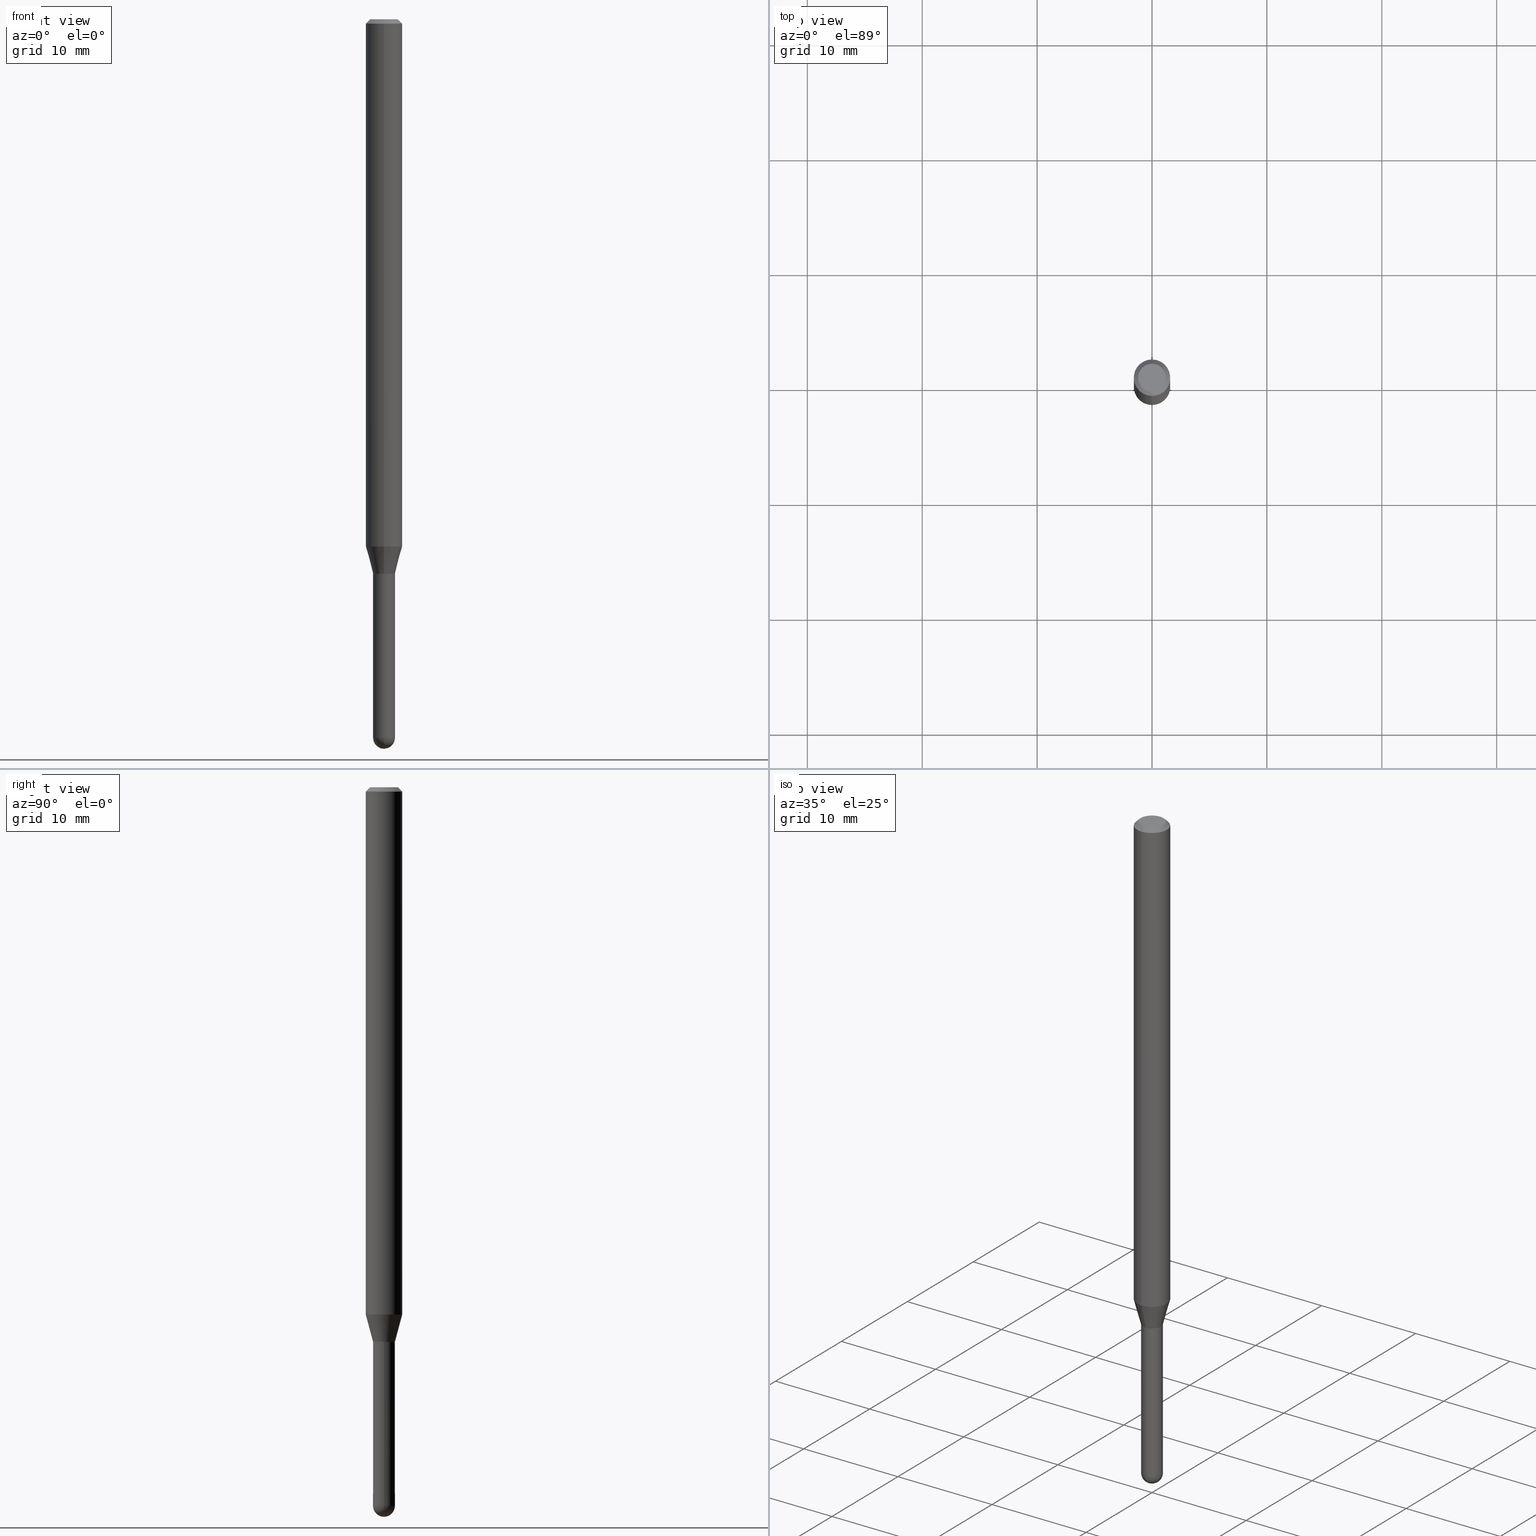
[diagram: canonical four-view strip — front | top / right | iso, engineering-drawing reading convention]
A machine part, canonical four-view strip (front | top / right | iso — engineering-drawing reading convention). The complete STEP part file that produces these views, byte-faithful:
ISO-10303-21;
HEADER;
FILE_DESCRIPTION (( 'STEP AP203' ),
    '1' );
FILE_NAME ('04498.STEP',
    '2024-03-08T20:09:47',
    ( '' ),
    ( '' ),
    'SwSTEP 2.0',
    'SolidWorks 2023',
    '' );
FILE_SCHEMA (( 'CONFIG_CONTROL_DESIGN' ));
ENDSEC;

DATA;
#1 = ADVANCED_FACE ( 'NONE', ( #298 ), #374, .F. ) ;
#2 = PERSON_AND_ORGANIZATION_ROLE ( 'classification_officer' ) ;
#3 = EDGE_CURVE ( 'NONE', #157, #508, #367, .T. ) ;
#4 = APPROVAL_ROLE ( '' ) ;
#5 = AXIS2_PLACEMENT_3D ( 'NONE', #33, #473, #109 ) ;
#6 = DIRECTION ( 'NONE',  ( -2.445468806185136597E-29, 3.491481338843145583E-15, 1.000000000000000000 ) ) ;
#7 = ADVANCED_FACE ( 'NONE', ( #332 ), #65, .T. ) ;
#8 = ORIENTED_EDGE ( 'NONE', *, *, #78, .T. ) ;
#9 = ORIENTED_EDGE ( 'NONE', *, *, #190, .F. ) ;
#10 = DIRECTION ( 'NONE',  ( -6.982962677686265922E-15, -1.000000000000000000, 3.491600828614139048E-15 ) ) ;
#11 = CARTESIAN_POINT ( 'NONE',  ( 4.364351673553919652E-16, 0.06249999999999995143, -0.01500000000000028394 ) ) ;
#12 = AXIS2_PLACEMENT_3D ( 'NONE', #317, #6, #507 ) ;
#13 = ORGANIZATION ( 'UNSPECIFIED', 'UNSPECIFIED', '' ) ;
#14 = DIRECTION ( 'NONE',  ( -2.445385366924015343E-29, 3.491600828614139048E-15, 1.000000000000000000 ) ) ;
#15 = ADVANCED_FACE ( 'NONE', ( #281 ), #85, .T. ) ;
#16 = CARTESIAN_POINT ( 'NONE',  ( 0.000000000000000000, 0.000000000000000000, 0.000000000000000000 ) ) ;
#17 = DIRECTION ( 'NONE',  ( -6.982962677686266711E-15, -1.000000000000000000, 3.491600828614139048E-15 ) ) ;
#18 = ADVANCED_FACE ( 'NONE', ( #131 ), #219, .T. ) ;
#19 = DIRECTION ( 'NONE',  ( -6.982962677686265922E-15, -1.000000000000000000, 3.491600828614139442E-15 ) ) ;
#20 = FACE_OUTER_BOUND ( 'NONE', #453, .T. ) ;
#21 = AXIS2_PLACEMENT_3D ( 'NONE', #16, #26, #19 ) ;
#22 = AXIS2_PLACEMENT_3D ( 'NONE', #460, #291, #204 ) ;
#23 = CARTESIAN_POINT ( 'NONE',  ( -2.583696190743453531E-16, -0.03700000000000663175, -1.900000000000000577 ) ) ;
#24 = SECURITY_CLASSIFICATION ( '', '', #172 ) ;
#25 = FACE_OUTER_BOUND ( 'NONE', #98, .T. ) ;
#26 = DIRECTION ( 'NONE',  ( -2.445385366924015343E-29, 3.491600828614139048E-15, 1.000000000000000000 ) ) ;
#27 = DIRECTION ( 'NONE',  ( -2.445385366924015343E-29, 3.491600828614139048E-15, 1.000000000000000000 ) ) ;
#28 = ORIENTED_EDGE ( 'NONE', *, *, #486, .T. ) ;
#29 = CARTESIAN_POINT ( 'NONE',  ( 2.664535259100844478E-16, 0.03749999999999343442, -1.899500000000000410 ) ) ;
#30 = CARTESIAN_POINT ( 'NONE',  ( 3.668078050386039129E-31, -5.237401242921231202E-17, -0.01500000000000006710 ) ) ;
#31 = CONICAL_SURFACE ( 'NONE', #96, 0.06250000000000000000, 0.7853981633974483900 ) ;
#32 = FACE_OUTER_BOUND ( 'NONE', #51, .T. ) ;
#33 = CARTESIAN_POINT ( 'NONE',  ( 1.601594344512973108E-45, -2.286808539890546055E-31, -6.549455828827402778E-17 ) ) ;
#34 = CARTESIAN_POINT ( 'NONE',  ( 4.646232197155630412E-29, -6.634041574366864704E-15, -1.900000000000000133 ) ) ;
#35 = CARTESIAN_POINT ( 'NONE',  ( 4.418074636319489634E-29, -6.308270782063436198E-15, -1.806698729810781057 ) ) ;
#36 = CIRCLE ( 'NONE', #224, 0.06250000000000000000 ) ;
#37 = APPLICATION_PROTOCOL_DEFINITION ( 'international standard', 'config_control_design', 1994, #182 ) ;
#38 = VERTEX_POINT ( 'NONE', #23 ) ;
#39 = FACE_OUTER_BOUND ( 'NONE', #399, .T. ) ;
#40 = ADVANCED_FACE ( 'NONE', ( #171 ), #388, .T. ) ;
#41 = ORIENTED_EDGE ( 'NONE', *, *, #190, .T. ) ;
#42 = CALENDAR_DATE ( 2024, 8, 3 ) ;
#43 = ORIENTED_EDGE ( 'NONE', *, *, #176, .T. ) ;
#44 = DATE_AND_TIME ( #401, #276 ) ;
#45 = DIRECTION ( 'NONE',  ( -2.445385366924015343E-29, 3.491600828614139048E-15, 1.000000000000000000 ) ) ;
#46 = VECTOR ( 'NONE', #342, 39.37007874015748143 ) ;
#47 = CIRCLE ( 'NONE', #420, 0.03749999999999999861 ) ;
#48 = CC_DESIGN_PERSON_AND_ORGANIZATION_ASSIGNMENT ( #81, #162, ( #179 ) ) ;
#49 = EDGE_LOOP ( 'NONE', ( #139, #447, #409, #491, #133 ) ) ;
#50 = CARTESIAN_POINT ( 'NONE',  ( 6.021966935230899318E-29, -8.597772796901246653E-15, -2.462500000000000355 ) ) ;
#51 = EDGE_LOOP ( 'NONE', ( #256, #228, #28, #498 ) ) ;
#52 = EDGE_CURVE ( 'NONE', #181, #456, #246, .T. ) ;
#53 = DIRECTION ( 'NONE',  ( 6.982962677686265922E-15, 1.000000000000000000, 0.000000000000000000 ) ) ;
#54 = CARTESIAN_POINT ( 'NONE',  ( -2.583696190743453531E-16, -0.03700000000000663175, -1.900000000000000577 ) ) ;
#55 = ORIENTED_EDGE ( 'NONE', *, *, #149, .T. ) ;
#56 = CC_DESIGN_DATE_AND_TIME_ASSIGNMENT ( #476, #118, ( #24 ) ) ;
#57 = CIRCLE ( 'NONE', #125, 0.03749999999999999861 ) ;
#58 = DIRECTION ( 'NONE',  ( -1.000000000000000000, 6.982962677686265922E-15, -4.883557194083112901E-29 ) ) ;
#59 = CARTESIAN_POINT ( 'NONE',  ( 3.316907271900976096E-16, 0.04749999999999999362, -1.985983185033085957E-16 ) ) ;
#60 = ORIENTED_EDGE ( 'NONE', *, *, #327, .F. ) ;
#61 = ORIENTED_EDGE ( 'NONE', *, *, #430, .T. ) ;
#62 = DIRECTION ( 'NONE',  ( 1.000000000000000000, -6.982962677686266711E-15, 4.876176775795935793E-29 ) ) ;
#63 = DIRECTION ( 'NONE',  ( -2.445385366924015343E-29, 3.491600828614139048E-15, 1.000000000000000000 ) ) ;
#64 = ORIENTED_EDGE ( 'NONE', *, *, #373, .F. ) ;
#65 = CONICAL_SURFACE ( 'NONE', #395, 0.03699999999999999817, 0.7853981633974739252 ) ;
#66 = CARTESIAN_POINT ( 'NONE',  ( -4.364351673553477397E-16, -0.06250000000000634215, -1.806698729810780835 ) ) ;
#67 = PRODUCT_RELATED_PRODUCT_CATEGORY ( 'detail', '', ( #299 ) ) ;
#68 = CARTESIAN_POINT ( 'NONE',  ( 4.645009504472168131E-29, -6.632295773952557672E-15, -1.899500000000000410 ) ) ;
#69 = MANIFOLD_SOLID_BREP ( 'Body-Move/Copy2[1]', #152 ) ;
#70 = COORDINATED_UNIVERSAL_TIME_OFFSET ( 5, 0, .BEHIND. ) ;
#71 = CALENDAR_DATE ( 2024, 8, 3 ) ;
#72 = AXIS2_PLACEMENT_3D ( 'NONE', #286, #454, #10 ) ;
#73 = PERSON_AND_ORGANIZATION_ROLE ( 'design_owner' ) ;
#74 = CARTESIAN_POINT ( 'NONE',  ( 2.629008122312834506E-16, 0.03699999999999336459, -1.900000000000000577 ) ) ;
#75 = PLANE ( 'NONE',  #221 ) ;
#76 = APPROVAL_ROLE ( '' ) ;
#77 = CONICAL_SURFACE ( 'NONE', #321, 0.06250000000000000000, 0.7853981633974483900 ) ;
#78 = EDGE_CURVE ( 'NONE', #89, #489, #504, .T. ) ;
#79 = VERTEX_POINT ( 'NONE', #471 ) ;
#80 = CARTESIAN_POINT ( 'NONE',  ( 4.440892098501069896E-16, 0.06249999999999995143, -0.01500000000000028394 ) ) ;
#81 = PERSON_AND_ORGANIZATION ( #352, #13 ) ;
#82 = ADVANCED_FACE ( 'NONE', ( #261 ), #474, .T. ) ;
#83 = EDGE_LOOP ( 'NONE', ( #153, #326, #238, #93 ) ) ;
#84 = DIRECTION ( 'NONE',  ( 6.982962677686265922E-15, 1.000000000000000000, -3.483106191921935554E-15 ) ) ;
#85 = CONICAL_SURFACE ( 'NONE', #160, 0.03749999999999992228, 0.2617993877991579010 ) ;
#86 = CIRCLE ( 'NONE', #400, 0.03699999999999999817 ) ;
#87 = EDGE_LOOP ( 'NONE', ( #140, #270, #174, #60 ) ) ;
#88 = DIRECTION ( 'NONE',  ( -2.445468806185136597E-29, 3.491481338843145583E-15, 1.000000000000000000 ) ) ;
#89 = VERTEX_POINT ( 'NONE', #66 ) ;
#90 = EDGE_CURVE ( 'NONE', #285, #89, #184, .T. ) ;
#91 = ORIENTED_EDGE ( 'NONE', *, *, #264, .F. ) ;
#92 = CARTESIAN_POINT ( 'NONE',  ( 4.646232197155630973E-29, -6.634041574366865493E-15, -1.900000000000000577 ) ) ;
#93 = ORIENTED_EDGE ( 'NONE', *, *, #470, .F. ) ;
#94 = DIRECTION ( 'NONE',  ( -6.982962677686265133E-15, -1.000000000000000000, 0.000000000000000000 ) ) ;
#95 = DIRECTION ( 'NONE',  ( 2.445385366924015062E-29, -3.491600828614139048E-15, -1.000000000000000000 ) ) ;
#96 = AXIS2_PLACEMENT_3D ( 'NONE', #30, #348, #304 ) ;
#97 = DIRECTION ( 'NONE',  ( -6.982962677686265922E-15, -1.000000000000000000, 3.491600828614139442E-15 ) ) ;
#98 = EDGE_LOOP ( 'NONE', ( #403, #252 ) ) ;
#99 = DIRECTION ( 'NONE',  ( 1.000000000000000000, -6.982962677686266711E-15, 4.876176775795935793E-29 ) ) ;
#100 = ORIENTED_EDGE ( 'NONE', *, *, #232, .F. ) ;
#101 = ORIENTED_EDGE ( 'NONE', *, *, #198, .F. ) ;
#102 = ADVANCED_FACE ( 'NONE', ( #307 ), #433, .T. ) ;
#103 = EDGE_LOOP ( 'NONE', ( #202, #499, #126, #320 ) ) ;
#104 = CARTESIAN_POINT ( 'NONE',  ( -2.618611004131879658E-16, -0.03750000000000655587, -1.900000000000000133 ) ) ;
#105 = APPROVAL ( #437, 'UNSPECIFIED' ) ;
#106 = CIRCLE ( 'NONE', #417, 0.03749999999999992228 ) ;
#107 = CARTESIAN_POINT ( 'NONE',  ( 0.000000000000000000, 0.000000000000000000, 0.000000000000000000 ) ) ;
#108 = EDGE_LOOP ( 'NONE', ( #9, #112, #43, #64 ) ) ;
#109 = DIRECTION ( 'NONE',  ( -6.982962677686266711E-15, -1.000000000000000000, 3.491600828614139048E-15 ) ) ;
#110 = EDGE_LOOP ( 'NONE', ( #55, #364, #91, #385 ) ) ;
#111 = PERSON_AND_ORGANIZATION ( #352, #13 ) ;
#112 = ORIENTED_EDGE ( 'NONE', *, *, #422, .T. ) ;
#113 = CARTESIAN_POINT ( 'NONE',  ( 4.646232197155630973E-29, -6.634041574366865493E-15, -1.900000000000000577 ) ) ;
#114 = AXIS2_PLACEMENT_3D ( 'NONE', #501, #215, #97 ) ;
#115 = EDGE_CURVE ( 'NONE', #38, #216, #193, .T. ) ;
#116 = PERSON_AND_ORGANIZATION ( #352, #13 ) ;
#117 = PERSON_AND_ORGANIZATION ( #352, #13 ) ;
#118 = DATE_TIME_ROLE ( 'classification_date' ) ;
#119 = CARTESIAN_POINT ( 'NONE',  ( -0.03749999999999999861, 2.664535259100375598E-16, -1.844600658845589808E-30 ) ) ;
#120 = AXIS2_PLACEMENT_3D ( 'NONE', #59, #95, #128 ) ;
#121 = VERTEX_POINT ( 'NONE', #391 ) ;
#122 = CARTESIAN_POINT ( 'NONE',  ( 0.000000000000000000, 0.000000000000000000, 0.000000000000000000 ) ) ;
#123 = ORIENTED_EDGE ( 'NONE', *, *, #165, .T. ) ;
#124 = DIRECTION ( 'NONE',  ( -4.937700262164674260E-15, -0.7071067811865632269, 0.7071067811865319186 ) ) ;
#125 = AXIS2_PLACEMENT_3D ( 'NONE', #50, #375, #168 ) ;
#126 = ORIENTED_EDGE ( 'NONE', *, *, #250, .F. ) ;
#127 = CYLINDRICAL_SURFACE ( 'NONE', #72, 0.06250000000000000000 ) ;
#128 = DIRECTION ( 'NONE',  ( 6.982962677686265922E-15, 1.000000000000000000, -3.491600828614139048E-15 ) ) ;
#129 = ORIENTED_EDGE ( 'NONE', *, *, #90, .T. ) ;
#130 = CARTESIAN_POINT ( 'NONE',  ( 3.668078050386039129E-31, -5.237401242921231202E-17, -0.01500000000000006710 ) ) ;
#131 = FACE_OUTER_BOUND ( 'NONE', #87, .T. ) ;
#132 = DIRECTION ( 'NONE',  ( 1.000000000000000000, -6.982962677686268288E-15, 0.000000000000000000 ) ) ;
#133 = ORIENTED_EDGE ( 'NONE', *, *, #206, .T. ) ;
#134 = DIRECTION ( 'NONE',  ( 2.445385366924015343E-29, -3.491600828614139048E-15, -1.000000000000000000 ) ) ;
#135 = ORIENTED_EDGE ( 'NONE', *, *, #3, .T. ) ;
#136 = LINE ( 'NONE', #469, #237 ) ;
#137 = AXIS2_PLACEMENT_3D ( 'NONE', #163, #58, #53 ) ;
#138 = LOCAL_TIME ( 15, 9, 47.00000000000000000, #360 ) ;
#139 = ORIENTED_EDGE ( 'NONE', *, *, #470, .T. ) ;
#140 = ORIENTED_EDGE ( 'NONE', *, *, #412, .F. ) ;
#141 = CC_DESIGN_PERSON_AND_ORGANIZATION_ASSIGNMENT ( #322, #155, ( #315 ) ) ;
#142 = PRODUCT_DEFINITION_SHAPE ( 'NONE', 'NONE',  #315 ) ;
#143 = EDGE_LOOP ( 'NONE', ( #343, #41, #129, #308 ) ) ;
#144 = DIRECTION ( 'NONE',  ( -2.445385366924015343E-29, 3.491600828614139048E-15, 1.000000000000000000 ) ) ;
#145 = DIRECTION ( 'NONE',  ( -6.982962677686265922E-15, -1.000000000000000000, 0.000000000000000000 ) ) ;
#146 = AXIS2_PLACEMENT_3D ( 'NONE', #289, #458, #94 ) ;
#147 = DIRECTION ( 'NONE',  ( -6.982962677686265922E-15, -1.000000000000000000, 0.000000000000000000 ) ) ;
#148 = CIRCLE ( 'NONE', #480, 0.03749999999999990841 ) ;
#149 = EDGE_CURVE ( 'NONE', #285, #494, #446, .T. ) ;
#150 = APPROVAL_STATUS ( 'not_yet_approved' ) ;
#151 = DIRECTION ( 'NONE',  ( -1.000000000000000000, 6.982962677686265922E-15, -4.883557194083112901E-29 ) ) ;
#152 = CLOSED_SHELL ( 'NONE', ( #288, #102, #303, #18, #280 ) ) ;
#153 = ORIENTED_EDGE ( 'NONE', *, *, #392, .F. ) ;
#154 = AXIS2_PLACEMENT_3D ( 'NONE', #283, #442, #167 ) ;
#155 = PERSON_AND_ORGANIZATION_ROLE ( 'creator' ) ;
#156 = DIRECTION ( 'NONE',  ( 5.024295867788190974E-15, 0.7071067811865681119, 0.7071067811865270336 ) ) ;
#157 = VERTEX_POINT ( 'NONE', #180 ) ;
#158 = APPROVAL_ROLE ( '' ) ;
#159 = APPROVAL_DATE_TIME ( #316, #185 ) ;
#160 = AXIS2_PLACEMENT_3D ( 'NONE', #254, #63, #413 ) ;
#161 = CC_DESIGN_APPROVAL ( #105, ( #179 ) ) ;
#162 = PERSON_AND_ORGANIZATION_ROLE ( 'creator' ) ;
#163 = CARTESIAN_POINT ( 'NONE',  ( 6.018760061646477031E-29, -8.602365222398048274E-15, -2.462500000000000355 ) ) ;
#164 = DIRECTION ( 'NONE',  ( 0.000000000000000000, 0.000000000000000000, 1.000000000000000000 ) ) ;
#165 = EDGE_CURVE ( 'NONE', #421, #157, #512, .T. ) ;
#166 = DIRECTION ( 'NONE',  ( 1.000000000000000000, -6.982962677686268288E-15, 0.000000000000000000 ) ) ;
#167 = DIRECTION ( 'NONE',  ( -7.105427357601000281E-15, -1.000000000000000000, 0.000000000000000000 ) ) ;
#168 = DIRECTION ( 'NONE',  ( 1.000000000000000000, -6.982962677686242256E-15, 0.000000000000000000 ) ) ;
#169 = DIRECTION ( 'NONE',  ( -6.982962677686265922E-15, -1.000000000000000000, 3.491600828614139048E-15 ) ) ;
#170 = VECTOR ( 'NONE', #233, 39.37007874015748143 ) ;
#171 = FACE_OUTER_BOUND ( 'NONE', #110, .T. ) ;
#172 = SECURITY_CLASSIFICATION_LEVEL ( 'unclassified' ) ;
#173 = FACE_OUTER_BOUND ( 'NONE', #436, .T. ) ;
#174 = ORIENTED_EDGE ( 'NONE', *, *, #206, .F. ) ;
#175 = DIRECTION ( 'NONE',  ( -2.445385366924015343E-29, 3.491600828614139048E-15, 1.000000000000000000 ) ) ;
#176 = EDGE_CURVE ( 'NONE', #244, #121, #406, .T. ) ;
#177 = ORIENTED_EDGE ( 'NONE', *, *, #178, .T. ) ;
#178 = EDGE_CURVE ( 'NONE', #121, #244, #223, .T. ) ;
#179 = PRODUCT_DEFINITION_FORMATION_WITH_SPECIFIED_SOURCE ( 'ANY', '', #299, .NOT_KNOWN. ) ;
#180 = CARTESIAN_POINT ( 'NONE',  ( 0.03749999999999999861, -6.895675644215212043E-15, -1.900000000000000133 ) ) ;
#181 = VERTEX_POINT ( 'NONE', #432 ) ;
#182 = APPLICATION_CONTEXT ( 'configuration controlled 3d designs of mechanical parts and assemblies' ) ;
#183 = DIRECTION ( 'NONE',  ( -2.445385366924015343E-29, 3.491600828614139048E-15, 1.000000000000000000 ) ) ;
#184 = LINE ( 'NONE', #104, #345 ) ;
#185 = APPROVAL ( #150, 'UNSPECIFIED' ) ;
#186 = DIRECTION ( 'NONE',  ( 6.982962677686265133E-15, 1.000000000000000000, 0.000000000000000000 ) ) ;
#187 = VECTOR ( 'NONE', #156, 39.37007874015748143 ) ;
#188 = AXIS2_PLACEMENT_3D ( 'NONE', #255, #410, #62 ) ;
#189 = APPROVAL_PERSON_ORGANIZATION ( #117, #105, #76 ) ;
#190 = EDGE_CURVE ( 'NONE', #494, #285, #106, .T. ) ;
#191 = CC_DESIGN_PERSON_AND_ORGANIZATION_ASSIGNMENT ( #203, #418, ( #179 ) ) ;
#192 = DIRECTION ( 'NONE',  ( 1.000000000000000000, -6.982962677686242256E-15, 0.000000000000000000 ) ) ;
#193 = CIRCLE ( 'NONE', #464, 0.03699999999999999817 ) ;
#194 = AXIS2_PLACEMENT_3D ( 'NONE', #35, #475, #300 ) ;
#195 = DATE_TIME_ROLE ( 'creation_date' ) ;
#196 = DATE_AND_TIME ( #269, #312 ) ;
#197 = CARTESIAN_POINT ( 'NONE',  ( 4.646232197155630412E-29, -6.634041574366864704E-15, -1.900000000000000133 ) ) ;
#198 = EDGE_CURVE ( 'NONE', #216, #244, #362, .T. ) ;
#199 = COORDINATED_UNIVERSAL_TIME_OFFSET ( 5, 0, .BEHIND. ) ;
#200 = LINE ( 'NONE', #369, #488 ) ;
#201 = CC_DESIGN_APPROVAL ( #185, ( #315 ) ) ;
#202 = ORIENTED_EDGE ( 'NONE', *, *, #264, .T. ) ;
#203 = PERSON_AND_ORGANIZATION ( #352, #13 ) ;
#204 = DIRECTION ( 'NONE',  ( -1.000000000000000000, 6.982962677686265922E-15, -4.876176775795935793E-29 ) ) ;
#205 = CARTESIAN_POINT ( 'NONE',  ( -0.03749999999999999861, -7.349340144441574435E-15, -1.900000000000000133 ) ) ;
#206 = EDGE_CURVE ( 'NONE', #421, #466, #487, .T. ) ;
#207 = ORIENTED_EDGE ( 'NONE', *, *, #327, .T. ) ;
#208 = DIRECTION ( 'NONE',  ( -2.445385366924015343E-29, 3.491600828614139048E-15, 1.000000000000000000 ) ) ;
#209 = ORIENTED_EDGE ( 'NONE', *, *, #52, .F. ) ;
#210 = DIRECTION ( 'NONE',  ( -2.445385366924015062E-29, 3.491600828614139048E-15, 1.000000000000000000 ) ) ;
#211 = ORIENTED_EDGE ( 'NONE', *, *, #176, .F. ) ;
#212 = DIRECTION ( 'NONE',  ( -6.982962677686265922E-15, -1.000000000000000000, 4.370956789862821150E-15 ) ) ;
#213 = AXIS2_PLACEMENT_3D ( 'NONE', #372, #344, #212 ) ;
#214 = CC_DESIGN_APPROVAL ( #293, ( #24 ) ) ;
#215 = DIRECTION ( 'NONE',  ( -2.445385366924015343E-29, 3.491600828614139048E-15, 1.000000000000000000 ) ) ;
#216 = VERTEX_POINT ( 'NONE', #359 ) ;
#217 = ORIENTED_EDGE ( 'NONE', *, *, #324, .T. ) ;
#218 = ORIENTED_EDGE ( 'NONE', *, *, #422, .F. ) ;
#219 = SPHERICAL_SURFACE ( 'NONE', #137, 0.03749999999999990841 ) ;
#220 = VECTOR ( 'NONE', #510, 39.37007874015748143 ) ;
#221 = AXIS2_PLACEMENT_3D ( 'NONE', #493, #210, #169 ) ;
#222 = DIRECTION ( 'NONE',  ( -2.445385366924015343E-29, 3.491600828614139048E-15, 1.000000000000000000 ) ) ;
#223 = CIRCLE ( 'NONE', #333, 0.03750000000000019290 ) ;
#224 = AXIS2_PLACEMENT_3D ( 'NONE', #350, #357, #279 ) ;
#225 = ORIENTED_EDGE ( 'NONE', *, *, #443, .F. ) ;
#226 = CC_DESIGN_PERSON_AND_ORGANIZATION_ASSIGNMENT ( #111, #73, ( #299 ) ) ;
#227 = EDGE_CURVE ( 'NONE', #382, #411, #319, .T. ) ;
#228 = ORIENTED_EDGE ( 'NONE', *, *, #306, .F. ) ;
#229 = AXIS2_PLACEMENT_3D ( 'NONE', #380, #495, #99 ) ;
#230 = COORDINATED_UNIVERSAL_TIME_OFFSET ( 5, 0, .BEHIND. ) ;
#231 = SHAPE_DEFINITION_REPRESENTATION ( #142, #251 ) ;
#232 = EDGE_CURVE ( 'NONE', #508, #157, #439, .T. ) ;
#233 = DIRECTION ( 'NONE',  ( -2.445468806185136877E-29, 3.491481338843145188E-15, 1.000000000000000000 ) ) ;
#234 = MANIFOLD_SOLID_BREP ( 'Body-Move/Copy2[2]', #296 ) ;
#235 = ORIENTED_EDGE ( 'NONE', *, *, #373, .T. ) ;
#236 = LINE ( 'NONE', #11, #284 ) ;
#237 = VECTOR ( 'NONE', #295, 39.37007874015748143 ) ;
#238 = ORIENTED_EDGE ( 'NONE', *, *, #227, .F. ) ;
#239 = DIRECTION ( 'NONE',  ( -6.982962677686265922E-15, -1.000000000000000000, 3.483106191921935554E-15 ) ) ;
#240 = ORIENTED_EDGE ( 'NONE', *, *, #324, .F. ) ;
#241 = DIRECTION ( 'NONE',  ( 1.000000000000000000, 0.000000000000000000, 0.000000000000000000 ) ) ;
#242 = ORIENTED_EDGE ( 'NONE', *, *, #386, .T. ) ;
#243 = DIRECTION ( 'NONE',  ( -2.445385366924015343E-29, 3.491600828614139048E-15, 1.000000000000000000 ) ) ;
#244 = VERTEX_POINT ( 'NONE', #29 ) ;
#245 = DESIGN_CONTEXT ( 'detailed design', #182, 'design' ) ;
#246 = LINE ( 'NONE', #416, #46 ) ;
#247 = PLANE ( 'NONE',  #22 ) ;
#248 = AXIS2_PLACEMENT_3D ( 'NONE', #310, #267, #192 ) ;
#249 = VECTOR ( 'NONE', #496, 39.37007874015748143 ) ;
#250 = EDGE_CURVE ( 'NONE', #489, #456, #434, .T. ) ;
#251 = ADVANCED_BREP_SHAPE_REPRESENTATION ( '04498', ( #69, #234, #467 ), #259 ) ;
#252 = ORIENTED_EDGE ( 'NONE', *, *, #389, .T. ) ;
#253 = CARTESIAN_POINT ( 'NONE',  ( 1.601594344512973108E-45, -2.286808539890546055E-31, -6.549455828827402778E-17 ) ) ;
#254 = CARTESIAN_POINT ( 'NONE',  ( 4.646232197155630412E-29, -6.634041574366864704E-15, -1.900000000000000133 ) ) ;
#255 = CARTESIAN_POINT ( 'NONE',  ( 0.000000000000000000, 0.000000000000000000, 0.000000000000000000 ) ) ;
#256 = ORIENTED_EDGE ( 'NONE', *, *, #278, .F. ) ;
#257 = CARTESIAN_POINT ( 'NONE',  ( 6.018760061646477031E-29, -8.602365222398048274E-15, -2.462500000000000355 ) ) ;
#258 = AXIS2_PLACEMENT_3D ( 'NONE', #68, #349, #145 ) ;
#259 =( GEOMETRIC_REPRESENTATION_CONTEXT ( 3 ) GLOBAL_UNCERTAINTY_ASSIGNED_CONTEXT ( ( #490 ) ) GLOBAL_UNIT_ASSIGNED_CONTEXT ( ( #452, #323, #461 ) ) REPRESENTATION_CONTEXT ( 'NONE', 'WORKASPACE' ) );
#260 = CARTESIAN_POINT ( 'NONE',  ( -0.03749999999999999861, -7.349340144441574435E-15, -2.462500000000000355 ) ) ;
#261 = FACE_OUTER_BOUND ( 'NONE', #330, .T. ) ;
#262 = CARTESIAN_POINT ( 'NONE',  ( 6.018760061646477031E-29, -8.602365222398048274E-15, -2.462500000000000355 ) ) ;
#263 = DIRECTION ( 'NONE',  ( -2.445385366924015343E-29, 3.491600828614139048E-15, 1.000000000000000000 ) ) ;
#264 = EDGE_CURVE ( 'NONE', #89, #181, #472, .T. ) ;
#265 = EDGE_LOOP ( 'NONE', ( #341, #292, #268, #240 ) ) ;
#266 = VECTOR ( 'NONE', #124, 39.37007874015748143 ) ;
#267 = DIRECTION ( 'NONE',  ( -2.445468806185136597E-29, 3.491481338843145583E-15, 1.000000000000000000 ) ) ;
#268 = ORIENTED_EDGE ( 'NONE', *, *, #178, .F. ) ;
#269 = CALENDAR_DATE ( 2024, 8, 3 ) ;
#270 = ORIENTED_EDGE ( 'NONE', *, *, #392, .T. ) ;
#271 = APPROVAL_STATUS ( 'not_yet_approved' ) ;
#272 = AXIS2_PLACEMENT_3D ( 'NONE', #34, #183, #387 ) ;
#273 = EDGE_LOOP ( 'NONE', ( #101, #61, #217, #211 ) ) ;
#274 = AXIS2_PLACEMENT_3D ( 'NONE', #275, #45, #290 ) ;
#275 = CARTESIAN_POINT ( 'NONE',  ( 4.646232197155630973E-29, -6.634041574366865493E-15, -1.900000000000000577 ) ) ;
#276 = LOCAL_TIME ( 15, 9, 47.00000000000000000, #230 ) ;
#277 = LINE ( 'NONE', #119, #170 ) ;
#278 = EDGE_CURVE ( 'NONE', #347, #489, #136, .T. ) ;
#279 = DIRECTION ( 'NONE',  ( -6.982962677686265922E-15, -1.000000000000000000, 3.483106191921935554E-15 ) ) ;
#280 = ADVANCED_FACE ( 'NONE', ( #20 ), #465, .T. ) ;
#281 = FACE_OUTER_BOUND ( 'NONE', #143, .T. ) ;
#282 = AXIS2_PLACEMENT_3D ( 'NONE', #338, #328, #166 ) ;
#283 = CARTESIAN_POINT ( 'NONE',  ( 6.018760061646477031E-29, -8.602365222398048274E-15, -2.462500000000000355 ) ) ;
#284 = VECTOR ( 'NONE', #371, 39.37007874015748143 ) ;
#285 = VERTEX_POINT ( 'NONE', #449 ) ;
#286 = CARTESIAN_POINT ( 'NONE',  ( 0.000000000000000000, 0.000000000000000000, 0.000000000000000000 ) ) ;
#287 = ORIENTED_EDGE ( 'NONE', *, *, #115, .F. ) ;
#288 = ADVANCED_FACE ( 'NONE', ( #455 ), #426, .T. ) ;
#289 = CARTESIAN_POINT ( 'NONE',  ( 4.646232197155630412E-29, -6.634041574366864704E-15, -1.900000000000000133 ) ) ;
#290 = DIRECTION ( 'NONE',  ( -6.982962677686265133E-15, -1.000000000000000000, 0.000000000000000000 ) ) ;
#291 = DIRECTION ( 'NONE',  ( 2.438088387897960049E-29, -3.491481338843145188E-15, -1.000000000000000000 ) ) ;
#292 = ORIENTED_EDGE ( 'NONE', *, *, #198, .T. ) ;
#293 = APPROVAL ( #271, 'UNSPECIFIED' ) ;
#294 = CARTESIAN_POINT ( 'NONE',  ( -4.364351673553916201E-16, -0.06250000000000000000, 2.182250517883836905E-16 ) ) ;
#295 = DIRECTION ( 'NONE',  ( -4.851104656540964275E-15, -0.7071067811865500152, -0.7071067811865450192 ) ) ;
#296 = CLOSED_SHELL ( 'NONE', ( #1, #462, #503, #428, #40, #15, #82, #370, #356, #477, #7, #363 ) ) ;
#297 = VECTOR ( 'NONE', #144, 39.37007874015748143 ) ;
#298 = FACE_OUTER_BOUND ( 'NONE', #108, .T. ) ;
#299 = PRODUCT ( '04498', '04498', '', ( #376 ) ) ;
#300 = DIRECTION ( 'NONE',  ( -6.982962677686265922E-15, -1.000000000000000000, 4.370956789862821150E-15 ) ) ;
#301 = DIRECTION ( 'NONE',  ( -2.445385366924015343E-29, 3.491600828614139048E-15, 1.000000000000000000 ) ) ;
#302 = CIRCLE ( 'NONE', #5, 0.04749999999999999362 ) ;
#303 = ADVANCED_FACE ( 'NONE', ( #329 ), #247, .F. ) ;
#304 = DIRECTION ( 'NONE',  ( 6.982962677686265922E-15, 1.000000000000000000, -3.483106191921935554E-15 ) ) ;
#305 = DIRECTION ( 'NONE',  ( -1.807323732225381810E-15, -0.2588190451025255689, 0.9659258262890669799 ) ) ;
#306 = EDGE_CURVE ( 'NONE', #79, #347, #448, .T. ) ;
#307 = FACE_OUTER_BOUND ( 'NONE', #83, .T. ) ;
#308 = ORIENTED_EDGE ( 'NONE', *, *, #386, .F. ) ;
#309 = COORDINATED_UNIVERSAL_TIME_OFFSET ( 5, 0, .BEHIND. ) ;
#310 = CARTESIAN_POINT ( 'NONE',  ( 6.021966935230899318E-29, -8.597772796901246653E-15, -2.462500000000000355 ) ) ;
#311 = CIRCLE ( 'NONE', #154, 0.03749999999999990841 ) ;
#312 = LOCAL_TIME ( 15, 9, 47.00000000000000000, #309 ) ;
#313 = PERSON_AND_ORGANIZATION ( #352, #13 ) ;
#314 = APPLICATION_CONTEXT ( 'configuration controlled 3d designs of mechanical parts and assemblies' ) ;
#315 = PRODUCT_DEFINITION ( 'UNKNOWN', '', #179, #245 ) ;
#316 = DATE_AND_TIME ( #42, #138 ) ;
#317 = CARTESIAN_POINT ( 'NONE',  ( 6.021966935230899318E-29, -8.597772796901246653E-15, -2.462500000000000355 ) ) ;
#318 = DIMENSIONAL_EXPONENTS ( 1.000000000000000000, 0.000000000000000000, 0.000000000000000000, 0.000000000000000000, 0.000000000000000000, 0.000000000000000000, 0.000000000000000000 ) ;
#319 = CIRCLE ( 'NONE', #12, 0.03749999999999999861 ) ;
#320 = ORIENTED_EDGE ( 'NONE', *, *, #78, .F. ) ;
#321 = AXIS2_PLACEMENT_3D ( 'NONE', #130, #134, #84 ) ;
#322 = PERSON_AND_ORGANIZATION ( #352, #13 ) ;
#323 =( NAMED_UNIT ( * ) PLANE_ANGLE_UNIT ( ) SI_UNIT ( $, .RADIAN. ) );
#324 = EDGE_CURVE ( 'NONE', #38, #121, #419, .T. ) ;
#325 = CARTESIAN_POINT ( 'NONE',  ( -2.664535259099770148E-16, -0.03750000000000855427, -2.462500000000000355 ) ) ;
#326 = ORIENTED_EDGE ( 'NONE', *, *, #412, .T. ) ;
#327 = EDGE_CURVE ( 'NONE', #411, #421, #57, .T. ) ;
#328 = DIRECTION ( 'NONE',  ( -2.445468806185136597E-29, 3.491481338843145583E-15, 1.000000000000000000 ) ) ;
#329 = FACE_OUTER_BOUND ( 'NONE', #441, .T. ) ;
#330 = EDGE_LOOP ( 'NONE', ( #209, #242, #8, #424 ) ) ;
#331 = CARTESIAN_POINT ( 'NONE',  ( 6.112068578670630349E-29, -8.730999559856264176E-15, -2.500000000000000000 ) ) ;
#332 = FACE_OUTER_BOUND ( 'NONE', #273, .T. ) ;
#333 = AXIS2_PLACEMENT_3D ( 'NONE', #429, #301, #147 ) ;
#334 = LINE ( 'NONE', #365, #249 ) ;
#335 = APPROVAL_DATE_TIME ( #44, #105 ) ;
#336 = CARTESIAN_POINT ( 'NONE',  ( -3.773273898774340269E-16, -0.04749999999999999362, 1.003564810708975726E-16 ) ) ;
#337 = APPROVAL_PERSON_ORGANIZATION ( #351, #185, #4 ) ;
#338 = CARTESIAN_POINT ( 'NONE',  ( 4.646390731751759982E-29, -6.633814543801977041E-15, -1.900000000000000133 ) ) ;
#339 = CARTESIAN_POINT ( 'NONE',  ( 6.021966935230899318E-29, -8.597772796901246653E-15, -2.462500000000000355 ) ) ;
#340 = CYLINDRICAL_SURFACE ( 'NONE', #114, 0.03750000000000005412 ) ;
#341 = ORIENTED_EDGE ( 'NONE', *, *, #115, .T. ) ;
#342 = DIRECTION ( 'NONE',  ( -2.445385366924015343E-29, 3.491600828614139048E-15, 1.000000000000000000 ) ) ;
#343 = ORIENTED_EDGE ( 'NONE', *, *, #425, .F. ) ;
#344 = DIRECTION ( 'NONE',  ( -2.445385366924015343E-29, 3.491600828614139048E-15, 1.000000000000000000 ) ) ;
#345 = VECTOR ( 'NONE', #305, 39.37007874015748854 ) ;
#346 = CARTESIAN_POINT ( 'NONE',  ( 0.03749999999999999861, -2.618611004132350016E-16, 1.828566290923475922E-30 ) ) ;
#347 = VERTEX_POINT ( 'NONE', #336 ) ;
#348 = DIRECTION ( 'NONE',  ( 2.445385366924015343E-29, -3.491600828614139048E-15, -1.000000000000000000 ) ) ;
#349 = DIRECTION ( 'NONE',  ( -2.445385366924015343E-29, 3.491600828614139048E-15, 1.000000000000000000 ) ) ;
#350 = CARTESIAN_POINT ( 'NONE',  ( 3.668078050386039129E-31, -5.237401242921231202E-17, -0.01500000000000006710 ) ) ;
#351 = PERSON_AND_ORGANIZATION ( #352, #13 ) ;
#352 = PERSON ( 'UNSPECIFIED', 'UNSPECIFIED', 'UNSPECIFIED', ('UNSPECIFIED'), ('UNSPECIFIED'), ('UNSPECIFIED') ) ;
#353 = DATE_AND_TIME ( #71, #407 ) ;
#354 = DIRECTION ( 'NONE',  ( -2.445385366924015343E-29, 3.491600828614139048E-15, 1.000000000000000000 ) ) ;
#355 = VECTOR ( 'NONE', #222, 39.37007874015748143 ) ;
#356 = ADVANCED_FACE ( 'NONE', ( #25 ), #497, .F. ) ;
#357 = DIRECTION ( 'NONE',  ( -2.445385366924015343E-29, 3.491600828614139048E-15, 1.000000000000000000 ) ) ;
#358 = AXIS2_PLACEMENT_3D ( 'NONE', #414, #27, #239 ) ;
#359 = CARTESIAN_POINT ( 'NONE',  ( 2.646771690706844422E-16, 0.03699999999999336459, -1.900000000000000577 ) ) ;
#360 = COORDINATED_UNIVERSAL_TIME_OFFSET ( 5, 0, .BEHIND. ) ;
#361 = APPROVAL_DATE_TIME ( #196, #293 ) ;
#362 = LINE ( 'NONE', #74, #187 ) ;
#363 = ADVANCED_FACE ( 'NONE', ( #173 ), #340, .F. ) ;
#364 = ORIENTED_EDGE ( 'NONE', *, *, #425, .T. ) ;
#365 = CARTESIAN_POINT ( 'NONE',  ( 2.664535259100834124E-16, 0.03749999999999328870, -1.900000000000000133 ) ) ;
#366 = APPLICATION_PROTOCOL_DEFINITION ( 'international standard', 'config_control_design', 1994, #314 ) ;
#367 = CIRCLE ( 'NONE', #282, 0.03749999999999999861 ) ;
#368 = CONICAL_SURFACE ( 'NONE', #274, 0.03699999999999999817, 0.7853981633974739252 ) ;
#369 = CARTESIAN_POINT ( 'NONE',  ( 2.664535259100379543E-16, 0.03750000000000005412, -1.309350310730304164E-16 ) ) ;
#370 = ADVANCED_FACE ( 'NONE', ( #32 ), #31, .T. ) ;
#371 = DIRECTION ( 'NONE',  ( 4.937700262164548042E-15, 0.7071067811865451302, -0.7071067811865499042 ) ) ;
#372 = CARTESIAN_POINT ( 'NONE',  ( 4.418074636319489634E-29, -6.308270782063436198E-15, -1.806698729810781057 ) ) ;
#373 = EDGE_CURVE ( 'NONE', #285, #121, #397, .T. ) ;
#374 = CYLINDRICAL_SURFACE ( 'NONE', #21, 0.03750000000000005412 ) ;
#375 = DIRECTION ( 'NONE',  ( -2.445468806185136597E-29, 3.491481338843145583E-15, 1.000000000000000000 ) ) ;
#376 = MECHANICAL_CONTEXT ( 'NONE', #314, 'mechanical' ) ;
#377 = DIRECTION ( 'NONE',  ( 1.000000000000000000, -6.982962677686242256E-15, 0.000000000000000000 ) ) ;
#378 = CC_DESIGN_DATE_AND_TIME_ASSIGNMENT ( #353, #195, ( #315 ) ) ;
#379 = ORIENTED_EDGE ( 'NONE', *, *, #149, .F. ) ;
#380 = CARTESIAN_POINT ( 'NONE',  ( 0.000000000000000000, 0.000000000000000000, 0.000000000000000000 ) ) ;
#381 = CARTESIAN_POINT ( 'NONE',  ( 3.552713678800951763E-16, 0.03749999999999328870, -1.900000000000000133 ) ) ;
#382 = VERTEX_POINT ( 'NONE', #260 ) ;
#383 = CARTESIAN_POINT ( 'NONE',  ( 4.646390731751759982E-29, -6.633814543801977041E-15, -1.900000000000000133 ) ) ;
#384 = ORIENTED_EDGE ( 'NONE', *, *, #232, .T. ) ;
#385 = ORIENTED_EDGE ( 'NONE', *, *, #90, .F. ) ;
#386 = EDGE_CURVE ( 'NONE', #181, #89, #396, .T. ) ;
#387 = DIRECTION ( 'NONE',  ( -6.982962677686265133E-15, -1.000000000000000000, 0.000000000000000000 ) ) ;
#388 = CONICAL_SURFACE ( 'NONE', #146, 0.03749999999999992228, 0.2617993877991579010 ) ;
#389 = EDGE_CURVE ( 'NONE', #347, #79, #302, .T. ) ;
#390 = CC_DESIGN_SECURITY_CLASSIFICATION ( #24, ( #179 ) ) ;
#391 = CARTESIAN_POINT ( 'NONE',  ( -2.618611004131907761E-16, -0.03750000000000695138, -1.899500000000000410 ) ) ;
#392 = EDGE_CURVE ( 'NONE', #479, #466, #148, .T. ) ;
#393 = DIRECTION ( 'NONE',  ( -6.982962677686265922E-15, -1.000000000000000000, 3.491600828614139048E-15 ) ) ;
#394 = DIRECTION ( 'NONE',  ( -2.445385366924015343E-29, 3.491600828614139048E-15, 1.000000000000000000 ) ) ;
#395 = AXIS2_PLACEMENT_3D ( 'NONE', #505, #175, #468 ) ;
#396 = CIRCLE ( 'NONE', #194, 0.06250000000000000000 ) ;
#397 = LINE ( 'NONE', #511, #297 ) ;
#398 = CALENDAR_DATE ( 2024, 8, 3 ) ;
#399 = EDGE_LOOP ( 'NONE', ( #287, #451 ) ) ;
#400 = AXIS2_PLACEMENT_3D ( 'NONE', #92, #243, #485 ) ;
#401 = CALENDAR_DATE ( 2024, 8, 3 ) ;
#402 = EDGE_CURVE ( 'NONE', #456, #489, #36, .T. ) ;
#403 = ORIENTED_EDGE ( 'NONE', *, *, #306, .T. ) ;
#404 = LENGTH_MEASURE_WITH_UNIT ( LENGTH_MEASURE( 0.02539999999999999897 ), #415 );
#405 = FACE_OUTER_BOUND ( 'NONE', #265, .T. ) ;
#406 = CIRCLE ( 'NONE', #258, 0.03750000000000019290 ) ;
#407 = LOCAL_TIME ( 15, 9, 47.00000000000000000, #199 ) ;
#408 = CARTESIAN_POINT ( 'NONE',  ( -4.364351673553912750E-16, -0.06250000000000005551, -0.01499999999999984852 ) ) ;
#409 = ORIENTED_EDGE ( 'NONE', *, *, #3, .F. ) ;
#410 = DIRECTION ( 'NONE',  ( -2.445468806185136597E-29, 3.491481338843145583E-15, 1.000000000000000000 ) ) ;
#411 = VERTEX_POINT ( 'NONE', #325 ) ;
#412 = EDGE_CURVE ( 'NONE', #479, #411, #311, .T. ) ;
#413 = DIRECTION ( 'NONE',  ( -6.982962677686265133E-15, -1.000000000000000000, 0.000000000000000000 ) ) ;
#414 = CARTESIAN_POINT ( 'NONE',  ( 3.668078050386039129E-31, -5.237401242921231202E-17, -0.01500000000000006710 ) ) ;
#415 =( LENGTH_UNIT ( ) NAMED_UNIT ( * ) SI_UNIT ( $, .METRE. ) );
#416 = CARTESIAN_POINT ( 'NONE',  ( 4.440892098500625669E-16, 0.06250000000000000000, -2.182250517883836905E-16 ) ) ;
#417 = AXIS2_PLACEMENT_3D ( 'NONE', #197, #354, #483 ) ;
#418 = PERSON_AND_ORGANIZATION_ROLE ( 'design_supplier' ) ;
#419 = LINE ( 'NONE', #54, #266 ) ;
#420 = AXIS2_PLACEMENT_3D ( 'NONE', #339, #500, #377 ) ;
#421 = VERTEX_POINT ( 'NONE', #445 ) ;
#422 = EDGE_CURVE ( 'NONE', #494, #244, #200, .T. ) ;
#423 = ORIENTED_EDGE ( 'NONE', *, *, #227, .T. ) ;
#424 = ORIENTED_EDGE ( 'NONE', *, *, #402, .F. ) ;
#425 = EDGE_CURVE ( 'NONE', #494, #181, #334, .T. ) ;
#426 = CYLINDRICAL_SURFACE ( 'NONE', #229, 0.03749999999999999861 ) ;
#427 = AXIS2_PLACEMENT_3D ( 'NONE', #383, #88, #132 ) ;
#428 = ADVANCED_FACE ( 'NONE', ( #492 ), #127, .T. ) ;
#429 = CARTESIAN_POINT ( 'NONE',  ( 4.645009504472168131E-29, -6.632295773952557672E-15, -1.899500000000000410 ) ) ;
#430 = EDGE_CURVE ( 'NONE', #216, #38, #86, .T. ) ;
#431 = DIRECTION ( 'NONE',  ( 1.000000000000000000, -6.982962677686265922E-15, 4.883557194083112340E-29 ) ) ;
#432 = CARTESIAN_POINT ( 'NONE',  ( 4.440892098501064966E-16, 0.06249999999999365785, -1.806698729810781501 ) ) ;
#433 = SPHERICAL_SURFACE ( 'NONE', #506, 0.03749999999999990841 ) ;
#434 = CIRCLE ( 'NONE', #358, 0.06250000000000000000 ) ;
#435 = DIRECTION ( 'NONE',  ( -6.982962677686265133E-15, -1.000000000000000000, 0.000000000000000000 ) ) ;
#436 = EDGE_LOOP ( 'NONE', ( #218, #379, #235, #177 ) ) ;
#437 = APPROVAL_STATUS ( 'not_yet_approved' ) ;
#438 = AXIS2_PLACEMENT_3D ( 'NONE', #107, #263, #393 ) ;
#439 = CIRCLE ( 'NONE', #427, 0.03749999999999999861 ) ;
#440 = APPROVAL_PERSON_ORGANIZATION ( #116, #293, #158 ) ;
#441 = EDGE_LOOP ( 'NONE', ( #135, #384 ) ) ;
#442 = DIRECTION ( 'NONE',  ( -1.000000000000000000, 7.105427357601001070E-15, -4.926315508542082329E-29 ) ) ;
#443 = EDGE_CURVE ( 'NONE', #382, #508, #277, .T. ) ;
#444 = EDGE_LOOP ( 'NONE', ( #502, #482, #463, #484 ) ) ;
#445 = CARTESIAN_POINT ( 'NONE',  ( 0.03749999999999999861, -7.877654770764846060E-15, -2.462500000000000355 ) ) ;
#446 = CIRCLE ( 'NONE', #272, 0.03749999999999992228 ) ;
#447 = ORIENTED_EDGE ( 'NONE', *, *, #443, .T. ) ;
#448 = CIRCLE ( 'NONE', #509, 0.04749999999999999362 ) ;
#449 = CARTESIAN_POINT ( 'NONE',  ( -2.618611004131879658E-16, -0.03750000000000655587, -1.900000000000000133 ) ) ;
#450 = LOCAL_TIME ( 15, 9, 47.00000000000000000, #70 ) ;
#451 = ORIENTED_EDGE ( 'NONE', *, *, #430, .F. ) ;
#452 =( CONVERSION_BASED_UNIT ( 'INCH', #404 ) LENGTH_UNIT ( ) NAMED_UNIT ( #318 ) );
#453 = EDGE_LOOP ( 'NONE', ( #225, #423, #207, #123, #100 ) ) ;
#454 = DIRECTION ( 'NONE',  ( -2.445385366924015343E-29, 3.491600828614139048E-15, 1.000000000000000000 ) ) ;
#455 = FACE_OUTER_BOUND ( 'NONE', #49, .T. ) ;
#456 = VERTEX_POINT ( 'NONE', #80 ) ;
#457 = FACE_OUTER_BOUND ( 'NONE', #444, .T. ) ;
#458 = DIRECTION ( 'NONE',  ( -2.445385366924015343E-29, 3.491600828614139048E-15, 1.000000000000000000 ) ) ;
#459 = CARTESIAN_POINT ( 'NONE',  ( 2.618611004132948565E-16, 0.03749999999999135275, -2.462500000000000355 ) ) ;
#460 = CARTESIAN_POINT ( 'NONE',  ( 2.618611004132814458E-16, 0.03749999999999336503, -1.900000000000000133 ) ) ;
#461 =( NAMED_UNIT ( * ) SI_UNIT ( $, .STERADIAN. ) SOLID_ANGLE_UNIT ( ) );
#462 = ADVANCED_FACE ( 'NONE', ( #405 ), #368, .T. ) ;
#463 = ORIENTED_EDGE ( 'NONE', *, *, #250, .T. ) ;
#464 = AXIS2_PLACEMENT_3D ( 'NONE', #113, #394, #435 ) ;
#465 = CYLINDRICAL_SURFACE ( 'NONE', #188, 0.03749999999999999861 ) ;
#466 = VERTEX_POINT ( 'NONE', #459 ) ;
#467 = AXIS2_PLACEMENT_3D ( 'NONE', #122, #164, #241 ) ;
#468 = DIRECTION ( 'NONE',  ( -6.982962677686265133E-15, -1.000000000000000000, 0.000000000000000000 ) ) ;
#469 = CARTESIAN_POINT ( 'NONE',  ( -4.287811248607203282E-16, -0.06250000000000005551, -0.01499999999999984852 ) ) ;
#470 = EDGE_CURVE ( 'NONE', #466, #382, #47, .T. ) ;
#471 = CARTESIAN_POINT ( 'NONE',  ( 3.840629472727447874E-16, 0.04749999999999999362, -2.313455976474456035E-16 ) ) ;
#472 = CIRCLE ( 'NONE', #213, 0.06250000000000000000 ) ;
#473 = DIRECTION ( 'NONE',  ( -2.445385366924015343E-29, 3.491600828614139048E-15, 1.000000000000000000 ) ) ;
#474 = CYLINDRICAL_SURFACE ( 'NONE', #438, 0.06250000000000000000 ) ;
#475 = DIRECTION ( 'NONE',  ( -2.445385366924015343E-29, 3.491600828614139048E-15, 1.000000000000000000 ) ) ;
#476 = DATE_AND_TIME ( #398, #450 ) ;
#477 = ADVANCED_FACE ( 'NONE', ( #39 ), #75, .F. ) ;
#478 = DIRECTION ( 'NONE',  ( 6.982962677686265922E-15, 1.000000000000000000, 0.000000000000000000 ) ) ;
#479 = VERTEX_POINT ( 'NONE', #331 ) ;
#480 = AXIS2_PLACEMENT_3D ( 'NONE', #262, #431, #186 ) ;
#481 = CC_DESIGN_PERSON_AND_ORGANIZATION_ASSIGNMENT ( #313, #2, ( #24 ) ) ;
#482 = ORIENTED_EDGE ( 'NONE', *, *, #278, .T. ) ;
#483 = DIRECTION ( 'NONE',  ( -6.982962677686265133E-15, -1.000000000000000000, 0.000000000000000000 ) ) ;
#484 = ORIENTED_EDGE ( 'NONE', *, *, #486, .F. ) ;
#485 = DIRECTION ( 'NONE',  ( -6.982962677686265133E-15, -1.000000000000000000, 0.000000000000000000 ) ) ;
#486 = EDGE_CURVE ( 'NONE', #79, #456, #236, .T. ) ;
#487 = CIRCLE ( 'NONE', #248, 0.03749999999999999861 ) ;
#488 = VECTOR ( 'NONE', #14, 39.37007874015748143 ) ;
#489 = VERTEX_POINT ( 'NONE', #408 ) ;
#490 = UNCERTAINTY_MEASURE_WITH_UNIT (LENGTH_MEASURE( 1.000000000000000082E-05 ), #452, 'distance_accuracy_value', 'NONE');
#491 = ORIENTED_EDGE ( 'NONE', *, *, #165, .F. ) ;
#492 = FACE_OUTER_BOUND ( 'NONE', #103, .T. ) ;
#493 = CARTESIAN_POINT ( 'NONE',  ( 4.646232197155630973E-29, -6.634041574366865493E-15, -1.900000000000000577 ) ) ;
#494 = VERTEX_POINT ( 'NONE', #381 ) ;
#495 = DIRECTION ( 'NONE',  ( -2.445468806185136597E-29, 3.491481338843145583E-15, 1.000000000000000000 ) ) ;
#496 = DIRECTION ( 'NONE',  ( 1.839019923739652775E-15, 0.2588190451025323413, 0.9659258262890650926 ) ) ;
#497 = PLANE ( 'NONE',  #120 ) ;
#498 = ORIENTED_EDGE ( 'NONE', *, *, #402, .T. ) ;
#499 = ORIENTED_EDGE ( 'NONE', *, *, #52, .T. ) ;
#500 = DIRECTION ( 'NONE',  ( -2.445468806185136597E-29, 3.491481338843145583E-15, 1.000000000000000000 ) ) ;
#501 = CARTESIAN_POINT ( 'NONE',  ( 0.000000000000000000, 0.000000000000000000, 0.000000000000000000 ) ) ;
#502 = ORIENTED_EDGE ( 'NONE', *, *, #389, .F. ) ;
#503 = ADVANCED_FACE ( 'NONE', ( #457 ), #77, .T. ) ;
#504 = LINE ( 'NONE', #294, #355 ) ;
#505 = CARTESIAN_POINT ( 'NONE',  ( 4.646232197155630973E-29, -6.634041574366865493E-15, -1.900000000000000577 ) ) ;
#506 = AXIS2_PLACEMENT_3D ( 'NONE', #257, #151, #478 ) ;
#507 = DIRECTION ( 'NONE',  ( 1.000000000000000000, -6.982962677686242256E-15, 0.000000000000000000 ) ) ;
#508 = VERTEX_POINT ( 'NONE', #205 ) ;
#509 = AXIS2_PLACEMENT_3D ( 'NONE', #253, #208, #17 ) ;
#510 = DIRECTION ( 'NONE',  ( -2.445468806185136877E-29, 3.491481338843145188E-15, 1.000000000000000000 ) ) ;
#511 = CARTESIAN_POINT ( 'NONE',  ( -2.618611004132353468E-16, -0.03750000000000005412, 1.309350310730304164E-16 ) ) ;
#512 = LINE ( 'NONE', #346, #220 ) ;
ENDSEC;
END-ISO-10303-21;
